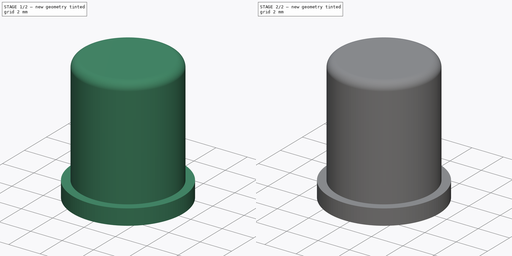
[diagram: build sequence overview — one tinted view per stage of 2, left to right]
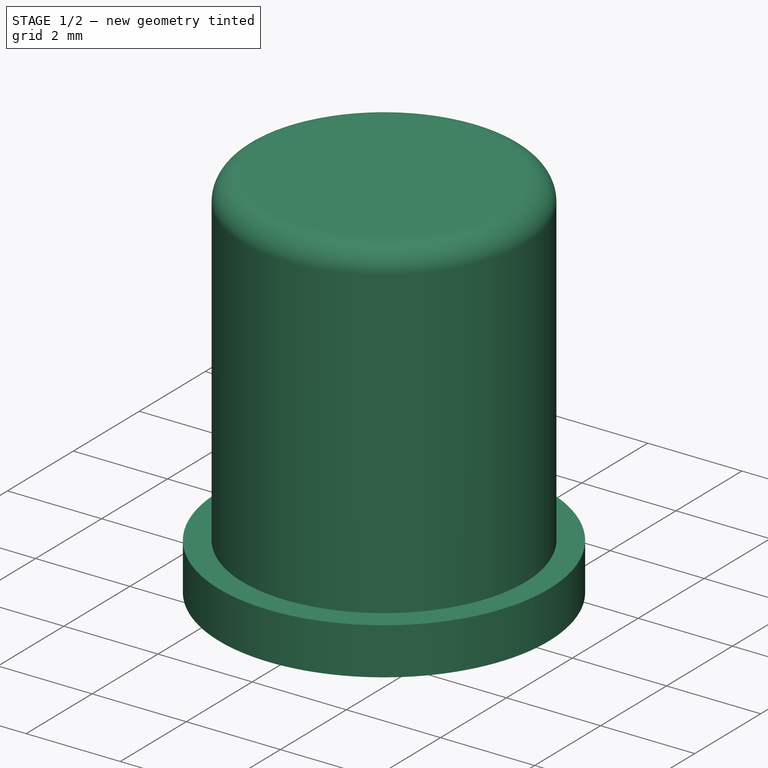
[diagram: stage 1 of 2 — iso view after this stage's code; geometry added in this stage tinted green]
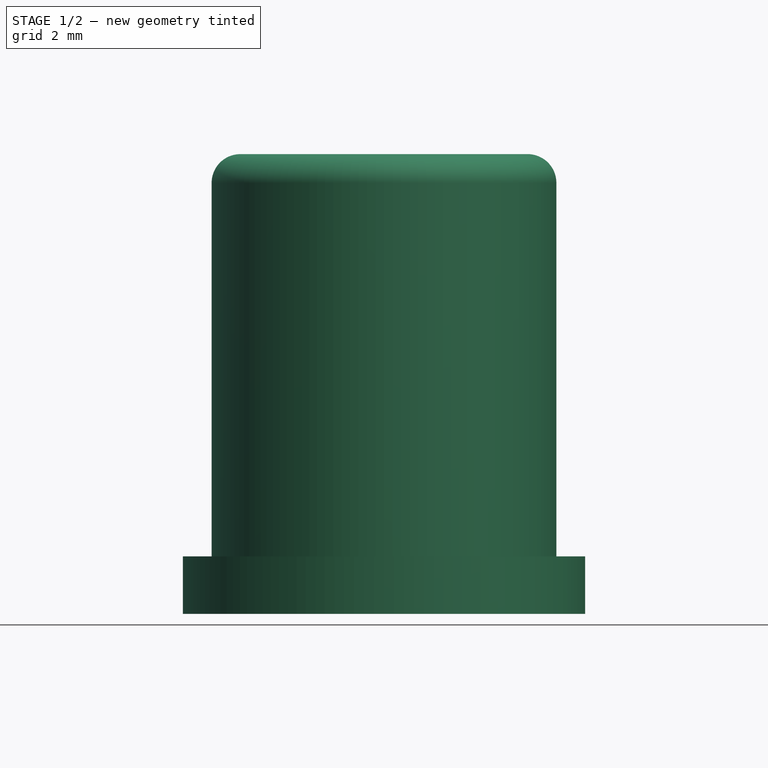
[diagram: stage 1 of 2 — front view after this stage's code; geometry added in this stage tinted green]
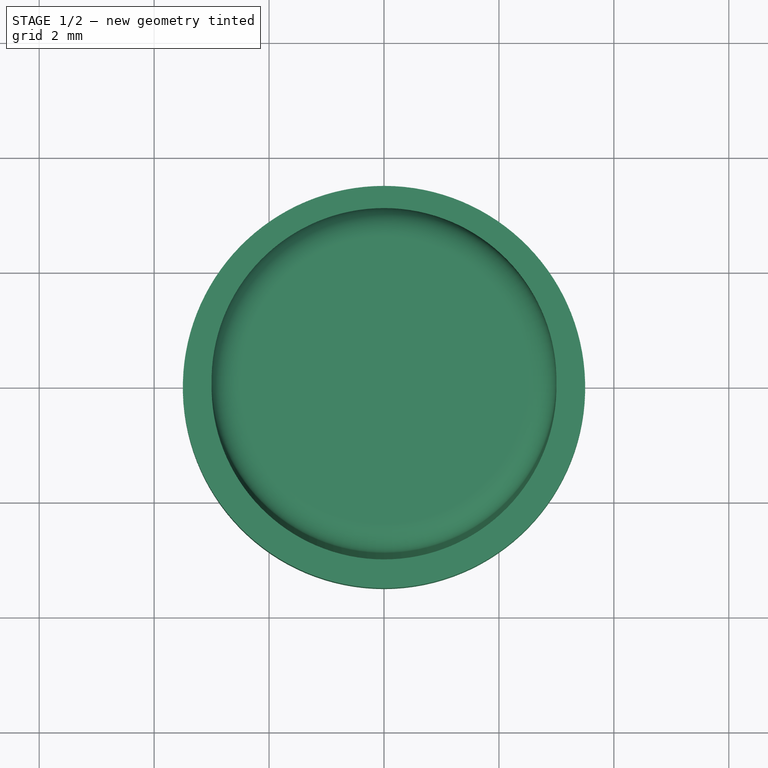
[diagram: stage 1 of 2 — top view after this stage's code; geometry added in this stage tinted green]
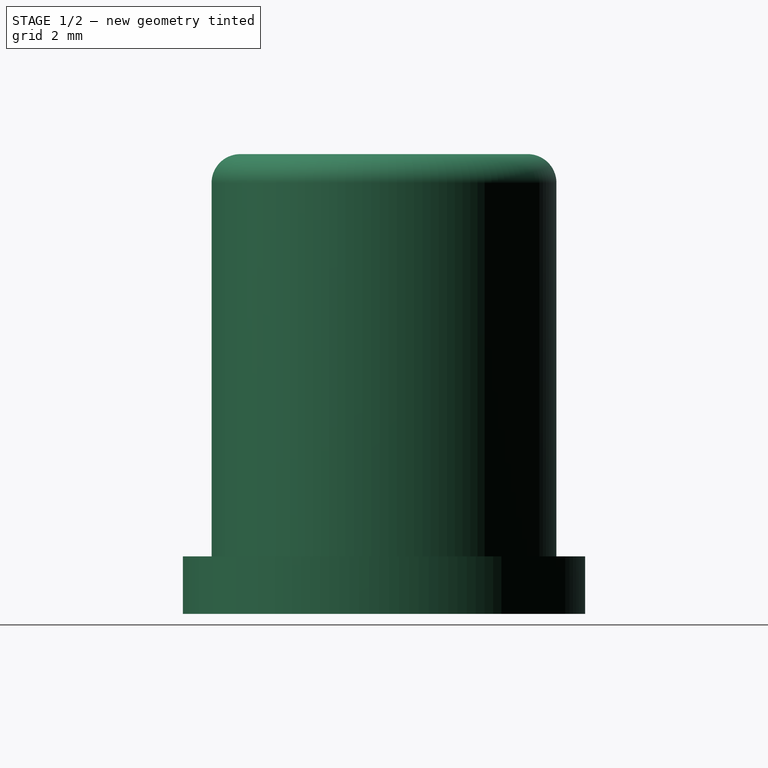
[diagram: stage 1 of 2 — right view after this stage's code; geometry added in this stage tinted green]
FCSTD DOCUMENT  (FreeCAD 0.19RUnknown)
Label: cap6x6
License: All rights reserved
LicenseURL: http://en.wikipedia.org/wiki/All_rights_reserved
objects: PartDesign::Fillet×2, Sketcher::SketchObject×1, PartDesign::Revolution×1, PartDesign::Body×1
note: 8 computed .brp shape members not serialized (recipe doc carries the construction recipe); baked Part::Feature solids carry a one-line shape summary decoded from their .brp

FEATURE [Sketcher::SketchObject] Sketch
  MapMode = 5
  Placement = pos=(0,0,0) rot=(0.57735,0.57735,0.57735;2.0944rad)
  Support = -> [YZ_Plane]
  sketch-geometry (8):
    g0: LineSegment StartX=1.55 StartY=0 StartZ=0 EndX=3.5 EndY=0 EndZ=0
    g1: LineSegment StartX=3.5 StartY=0 StartZ=0 EndX=3.5 EndY=1 EndZ=0
    g2: LineSegment StartX=3.5 StartY=1 StartZ=0 EndX=3 EndY=1 EndZ=0
    g3: LineSegment StartX=3 StartY=1 StartZ=0 EndX=3 EndY=8 EndZ=0
    g4: LineSegment StartX=3 StartY=8 StartZ=0 EndX=0 EndY=8 EndZ=0
    g5: LineSegment StartX=0 StartY=8 StartZ=0 EndX=0 EndY=6 EndZ=0
    g6: LineSegment StartX=0 StartY=6 StartZ=0 EndX=1.55 EndY=6 EndZ=0
    g7: LineSegment StartX=1.55 StartY=6 StartZ=0 EndX=1.55 EndY=0 EndZ=0
  constraints (24):
    c: Coincident(g0,g1)
    c: Vertical(g1)
    c: Coincident(g1,g2)
    c: Horizontal(g2)
    c: Coincident(g2,g3)
    c: Coincident(g3,g4)
    c: Horizontal(g4)
    c: Coincident(g4,g5)
    c: Vertical(g5)
    c: Coincident(g5,g6)
    c: Coincident(g6,g7)
    c: Coincident(g7,g0)
    c: Vertical(g3)
    c: PointOnObject(g0,g-1)
    c: PointOnObject(g0,g-1)
    c: PointOnObject(g5,g-2)
    c: Vertical(g7)
    c: Horizontal(g6)
    c: DistanceX(g4,g4) = 3
    c: DistanceX(g2,g2) = 0.5
    c: DistanceY(g1,g1) = 1
    c: DistanceY(g7,g7) = 6
    c: DistanceY(g3,g3) = 7
    c: DistanceX(g6,g6) = 1.55
FEATURE [PartDesign::Revolution] Revolution
  Angle = 360
  Axis = (-2e-16,3e-16,1)
  Base = (0,0,0)
  Placement = pos=(0,0,0) rot=(0.57735,0.57735,0.57735;2.0944rad)
  Profile = -> Sketch
  ReferenceAxis = -> Sketch [V_Axis]
  Reversed = true
FEATURE [PartDesign::Fillet] Fillet
  Base = -> Revolution [Edge6]
  BaseFeature = -> Revolution
  Placement = pos=(0,0,0) rot=(0.57735,0.57735,0.57735;2.0944rad)
  Radius = 0.5
  SupportTransform = false
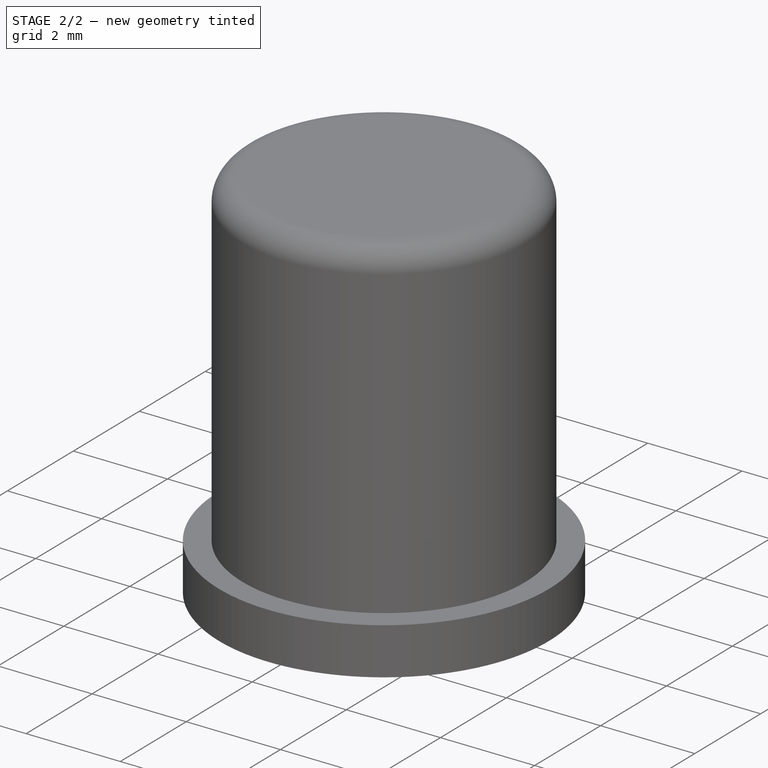
[diagram: stage 2 of 2 — iso view after this stage's code; geometry added in this stage tinted green]
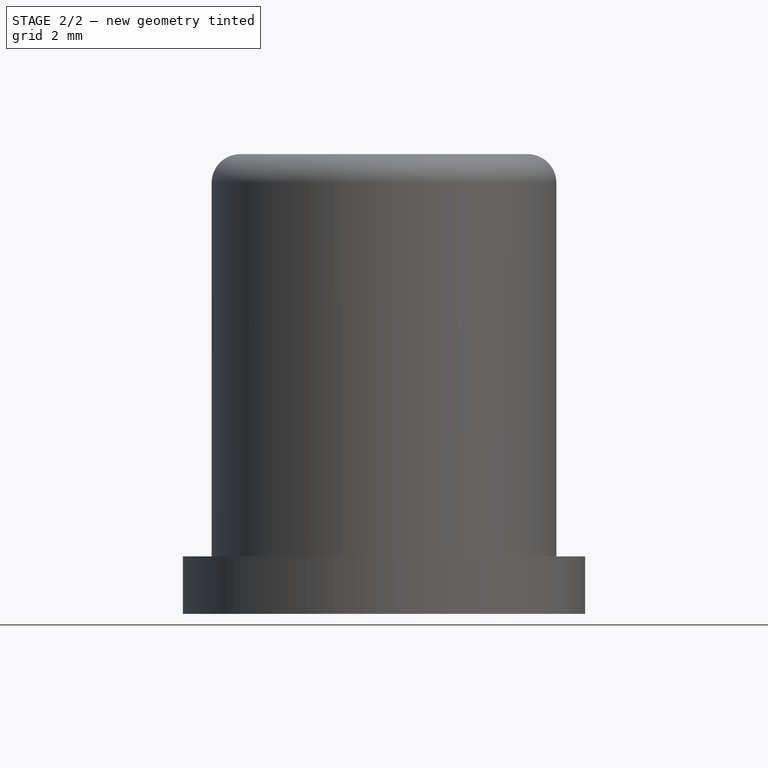
[diagram: stage 2 of 2 — front view after this stage's code; geometry added in this stage tinted green]
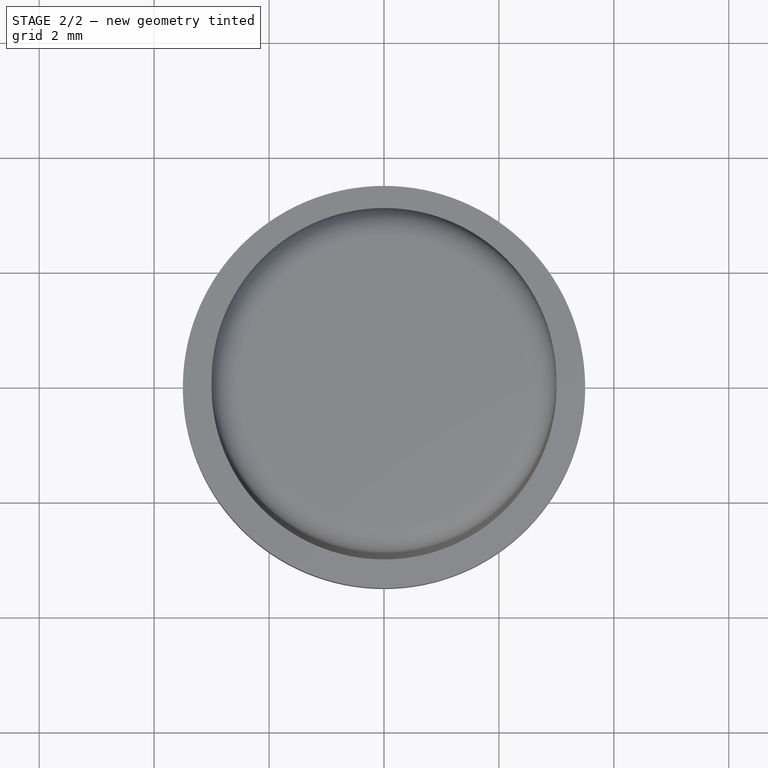
[diagram: stage 2 of 2 — top view after this stage's code; geometry added in this stage tinted green]
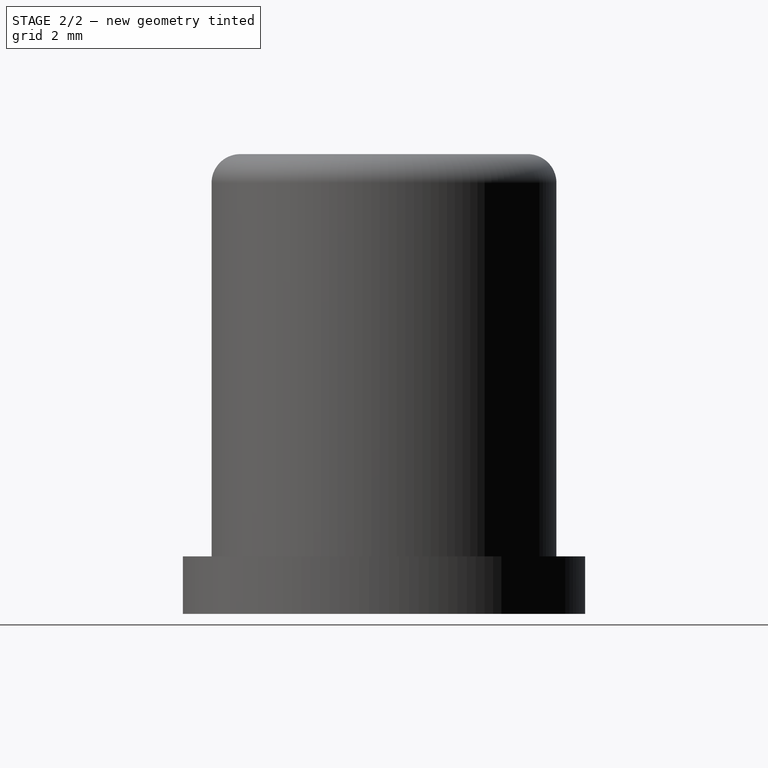
[diagram: stage 2 of 2 — right view after this stage's code; geometry added in this stage tinted green]
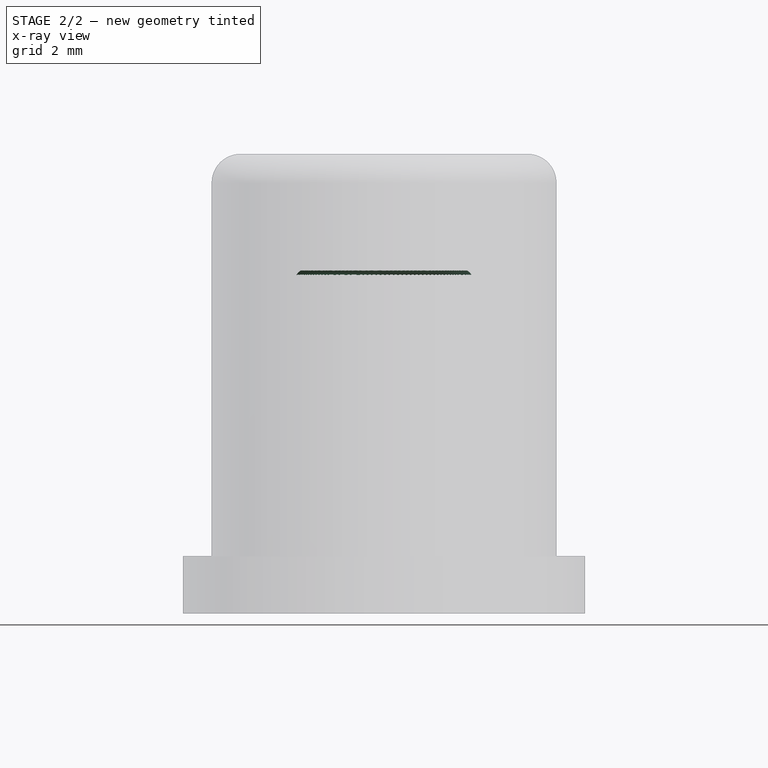
[diagram: stage 2 of 2 — x-ray composite at the front view; earlier geometry ghosted, this stage's added geometry solid]
FEATURE [PartDesign::Fillet] Fillet001
  Base = -> Fillet [Edge10]
  BaseFeature = -> Fillet
  Placement = pos=(0,0,0) rot=(0.57735,0.57735,0.57735;2.0944rad)
  Radius = 0.2
  SupportTransform = false
FEATURE [PartDesign::Body] Body
  Group = -> [Sketch,Revolution,Fillet,Fillet001]
  Origin = -> Origin
  Tip = -> Fillet001
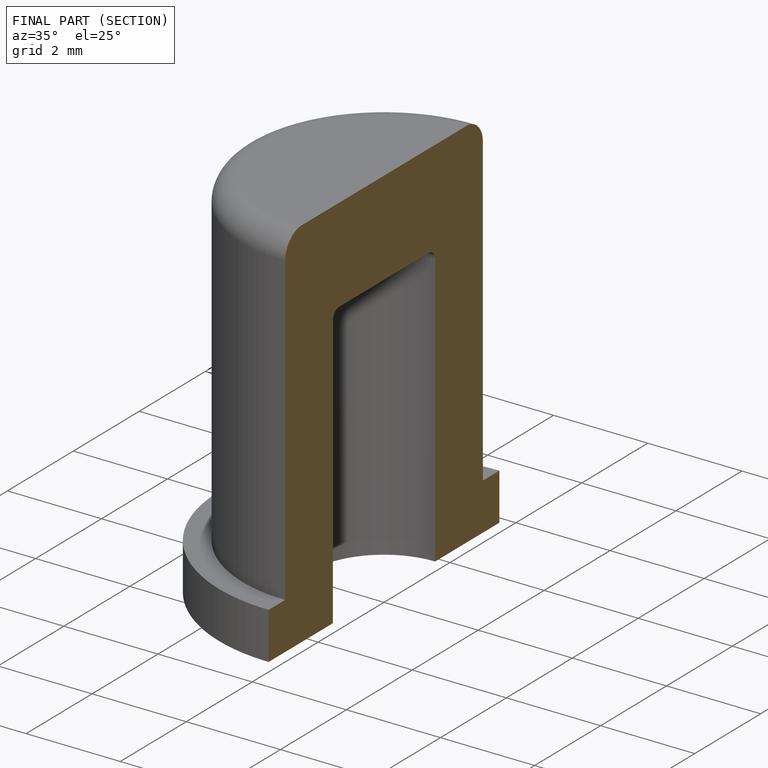
[diagram: finished part — half-section view (interior)]
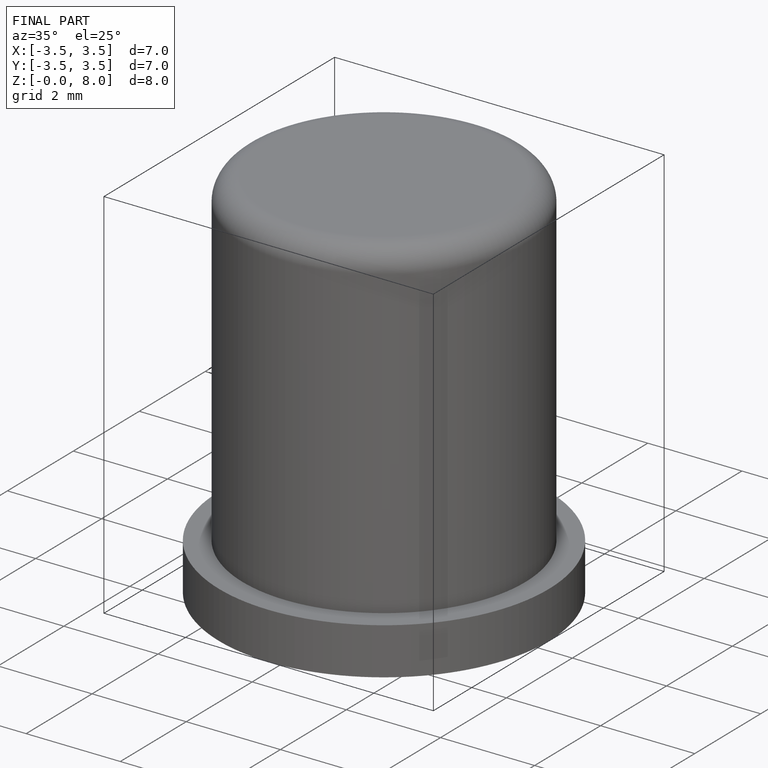
[diagram: finished part — iso view with bounding-box wireframe]
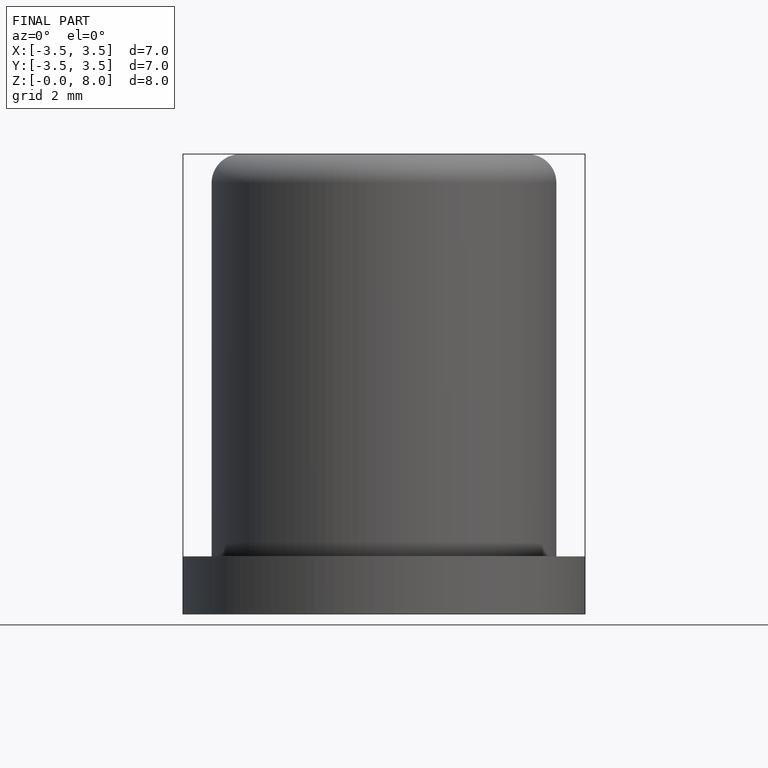
[diagram: finished part — front view with bounding-box wireframe]
